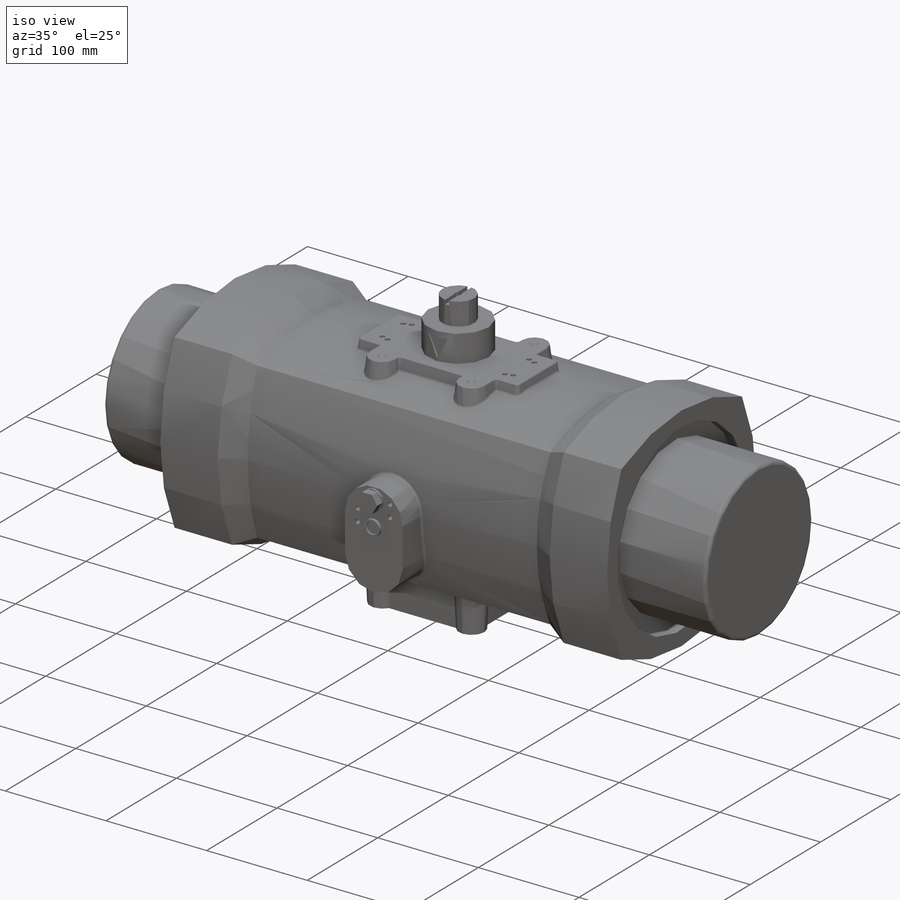
[diagram: iso view]
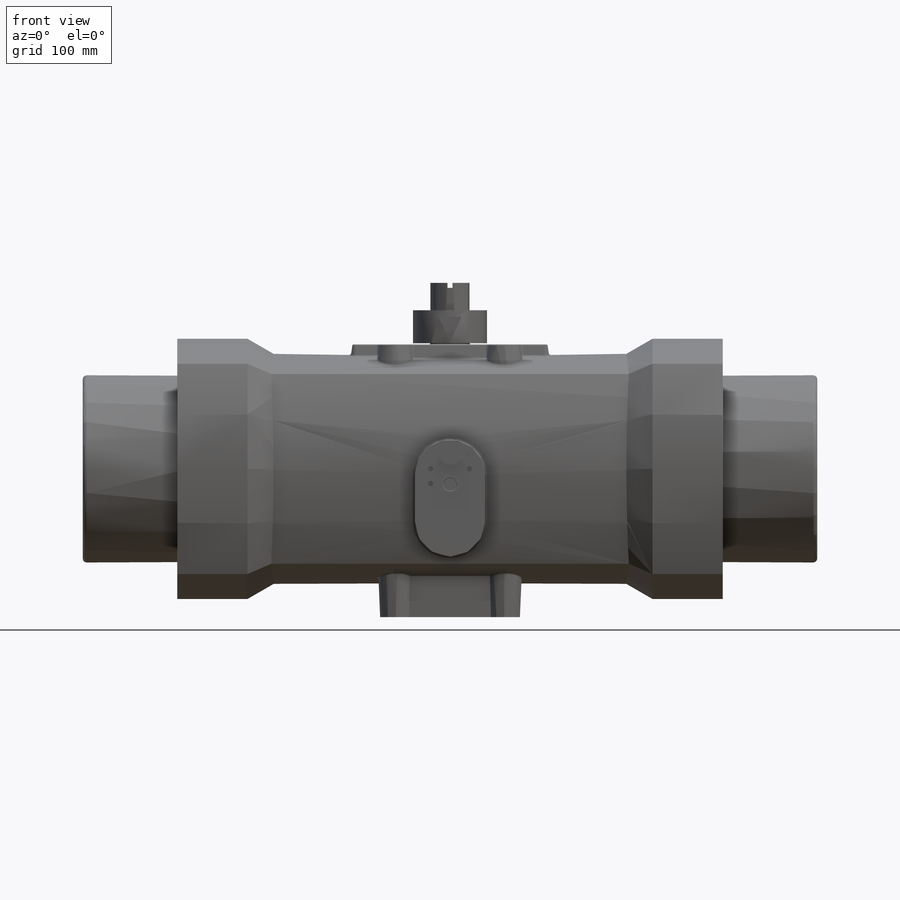
[diagram: front view]
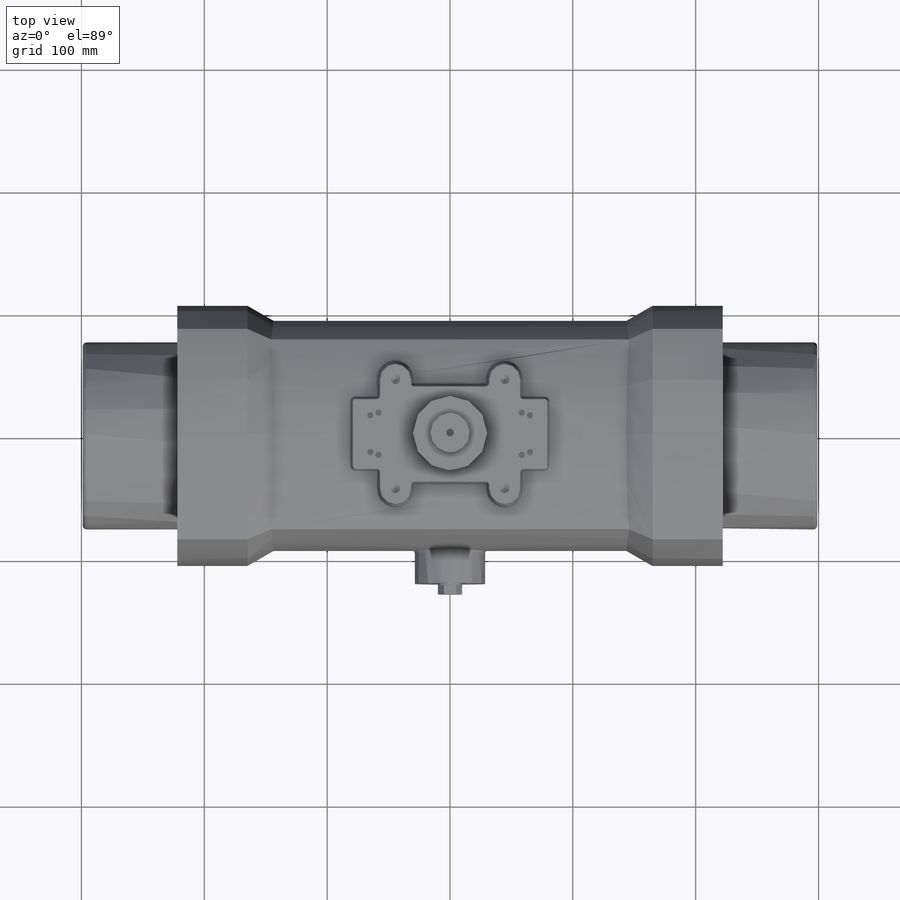
[diagram: top view]
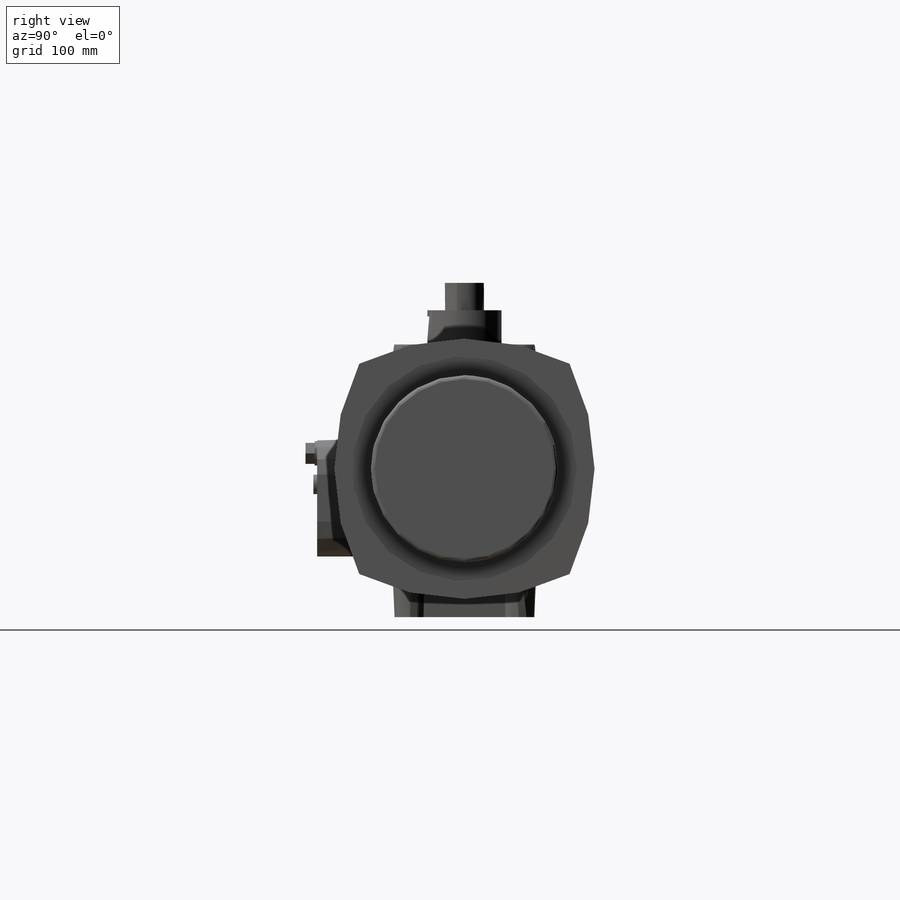
[diagram: right view]
SOLIDWORKS PART (.sldprt)
format: sldprt  version: not decoded by parser v0  size: 1,470,976 bytes
history: native  units: mm
features: sketch x29, cut_extrude x14, extrude x12, plane x9, mirror x4, fillet x3, chamfer x2, material x1 (+12 scaffold rows collapsed)
feature tree (86):
  scaffold x12  (default folders/planes/origin — collapsed)
  material  "Material <not specified>"
  sketch  "Sketch1"  dims[D1=144.78mm D2=187.325mm D3=381.0mm D4=381.0mm]
  extrude  "BODY DIA"  Depth=443.992mm
  sketch  "Sketch2"  dims[c1.D3=152.4mm c1.D4=152.4mm c2.D3=211.836mm c2.D4=~76.292644mm c2.D1=190.5mm c2.D2=190.5mm c3.D1=381.0mm c3.D2=381.0mm c4.D1=~49.77644mm c4.D2=~24.88822mm c5.D1=59.944mm c5.D2=46.99mm]
  extrude  "END1"  Depth=57.15mm
  mirror  "END2"
  sketch  "Sketch3"  dims[D1=~76.292644mm D2=~76.292644mm D3=107.95mm]
  extrude  "END DRAFT1"  Depth=50.8mm
  mirror  "END DRAFT2"
  sketch  "Sketch4"  dims[c1.D1=~47.308502mm c1.D2=182.88mm c2.D1=15.24mm c2.D2=~4.74497mm]
  cut_extrude  "END DIA DETAIL1"  Depth=8.89mm
  mirror  "END DIA DETAIL2"
  plane  "Plane1"  Offset=120.65mm
  plane  "Plane2"  Offset=221.996mm
  sketch  "Sketch5"  dims[c1.D1=102.108mm c1.D4=23.749mm c1.D5=37.338mm c1.D6=5.08mm c2.D1=124.968mm c2.D3=25.4mm c2.D2=~18.042574mm c3.D2=45.0deg c3.D3=~23.718196mm c4.D3=45.0deg c4.D7=~17.601302mm c4.D1=~72.201259mm c4.D2=~44.18286mm c5.D2=45.0deg c5.D5=101.6mm c5.D6=101.6mm c6.D5=101.6mm c6.D6=101.6mm]
  extrude  "Extrude4"  [1 undecoded]
  sketch  "Sketch6"  dims[D1=57.15mm D2=0.254mm]
  cut_extrude  "Cut-Extrude2"  Depth=19.05mm
  sketch  "Sketch7"  dims[c1.D7=49.022mm c1.D1=~14.500691mm c2.D1=45.0deg c2.D2=~14.500691mm c3.D2=45.0deg c3.D3=10.9982mm c3.D4=10.9982mm c3.D5=10.9982mm c3.D6=36.068mm c4.D3=~20.596629mm]
  cut_extrude  "Cut-Extrude3"  Depth=38.1mm
  sketch  "Sketch8"  dims[c1.D2=124.968mm c1.D3=8.0772mm c1.D4=69.85mm c1.D5=6.8326mm c1.D1=~14.070852mm c2.D1=45.0deg c2.D3=~10.328577mm]
  cut_extrude  "Cut-Extrude4"  Depth=20.066mm
  sketch  "Sketch10"  dims[c1.D1=11.2522mm c1.D4=11.2522mm c1.D3=11.2522mm c1.D7=69.0mm c1.D8=13.462mm c1.D10=5.08mm c1.D13=6.35mm c1.D15=146.05mm c1.D18=6.35mm c1.D14=6.35mm c1.D17=6.35mm c1.D23=25.4mm c1.D24=2.54mm c1.D2=80.01mm c2.D3=29.972mm c2.D5=~22.190248mm c3.D5=45.0deg c3.D6=9.0424mm c3.D1=40.005mm c3.D2=14.986mm c3.D4=~28.185945mm c4.D4=45.0deg c4.D9=~44.005788mm c5.D9=48.0deg c5.D11=107.95mm c5.D12=50.8mm c5.D14=40.64mm c5.D16=~43.371802mm c5.D17=~32.411654mm c5.D13=81.026mm c6.D14=81.026mm c6.D15=~16.435081mm c7.D15=65.0deg c7.D16=~12.416821mm c8.D16=65.0deg c8.D18=158.75mm c8.D19=57.15mm c8.D20=77.7875mm c8.D21=88.9mm c8.D22=88.9mm c9.D20=77.7875mm]
  extrude  "Extrude5"  [1 undecoded]
  plane  "Plane3"  Offset=272.034mm
  plane  "Plane4"  Offset=119.888mm
  plane  "Plane5"  Offset=9.5123mm
  sketch  "Sketch23"  dims[D1=63.5mm]
  sketch  "Sketch24"
  chamfer  "Chamfer2"  Distance=0.508mm Angle=45deg
  plane  "Plane6"  Offset=28.702mm
  sketch  "Sketch26"  dims[D1=36.449mm]
  sketch  "Sketch27"  dims[D1=32.004mm D2=15.9766mm]
  extrude  "Extrude7"  [1 undecoded]
  sketch  "Sketch28"  dims[D1=4.064mm]
  cut_extrude  "Cut-Extrude15"  Depth=4.064mm
  cut_extrude  "ASAHI TEXT"  Depth=0.0508mm
  plane  "Plane7"  Offset=11.7348mm
  sketch  "Sketch29"  dims[D1=36.195mm]
  sketch  "Sketch33"  dims[c1.D2=9.525mm c1.D5=3.175mm c1.D6=57.15mm c1.D7=28.575mm c1.D1=45.847mm c1.D3=47.752mm c1.D4=~33.488529mm c2.D4=75.0deg c2.D8=~49.877119mm c3.D8=~0.087737deg c4.D8=95.25mm]
  extrude  "Extrude11"  [1 undecoded]
  sketch  "Sketch35"  dims[D1=17.0434mm D2=12.6238mm]
  extrude  "Extrude12"  [1 undecoded]
  sketch  "Sketch36"
  extrude  "Extrude13"  Depth=2.032mm
  sketch  "Sketch37"  dims[D2=15.8496mm D1=12.6238mm]
  extrude  "Extrude14"  Depth=3.048mm
  sketch  "Sketch38"  dims[D1=11.43mm]
  cut_extrude  "Cut-Extrude18"  Depth=1.27mm
  sketch  "Sketch39"  dims[D3=6.0452mm D1=32.004mm D2=23.9776mm]
  cut_extrude  "Cut-Extrude19"  Depth=0.0508mm
  sketch  "Sketch40"  dims[D1=4.3942mm]
  cut_extrude  "Cut-Extrude20"  Depth=8mm
  fillet  "Fillet6"  Radius=1mm
  sketch  "Sketch42"  dims[D1=7.9375mm D2=72.136mm D3=72.136mm]
  cut_extrude  "Cut-Extrude21"  Depth=10mm
  sketch  "Sketch43"  dims[c1.D1=~10.496079mm c1.D5=4.7625mm c2.D1=~116.68125mm c2.D2=34.544mm c2.D3=130.048mm c2.D4=29.972mm]
  cut_extrude  "Cut-Extrude22"  Depth=6mm
  chamfer  "Chamfer3"  Distance=0.254mm Angle=45deg
  sketch  "Sketch44"  dims[D1=63.5mm]
  cut_extrude  "TEXT2"  Depth=0.0508mm
  sketch  "Sketch45"  dims[D1=6.1722mm]
  cut_extrude  "Cut-Extrude23"  Depth=11.938mm
  plane  "Plane8"  Offset=22.225mm
  sketch  "Sketch46"  dims[D1=60.325mm]
  extrude  "Extrude15"  Depth=26.924mm
  plane  "Plane10"  Offset=30.1625mm
  sketch  "Sketch47"  dims[D1=19.05mm D2=5.08mm D3=19.05mm]
  cut_extrude  "Cut-Extrude24"  Depth=2.54mm
  fillet  "Fillet8"  Radius=2mm
  sketch  "Sketch48"
  extrude  "Extrude16"  Depth=76.962mm
  mirror  "Mirror1"
  fillet  "Fillet9"  Radius=3.175mm
decode coverage: 52 of 64 modeling features carry decoded parameters
note: ~ marks probable driven/reference dimensions
note: 5 parameter values undecoded
summary: no parameter record found for 5 features
note: suppression state not decoded; provenance and decode notes live in map.json
